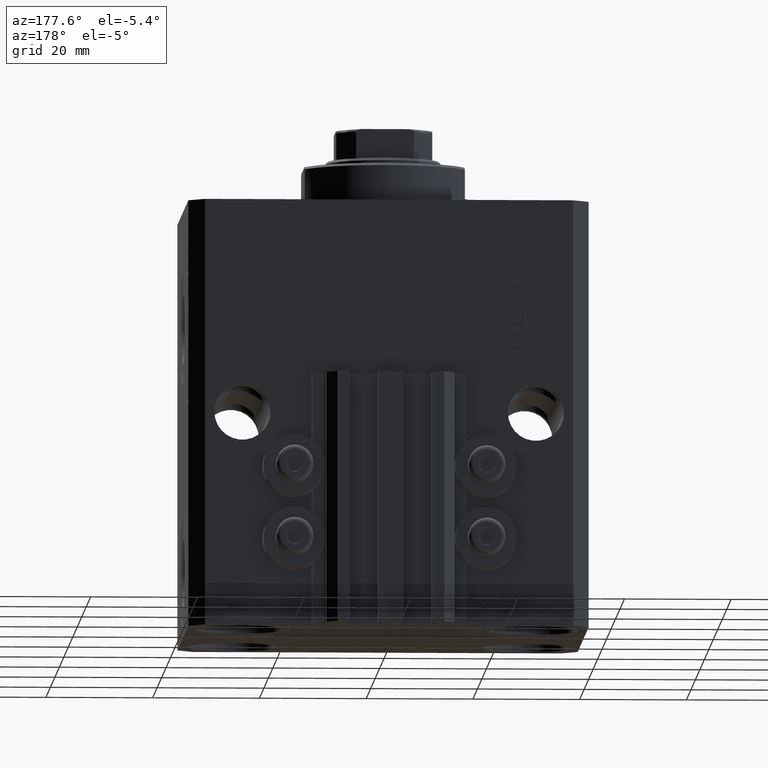
[diagram: clean part render]
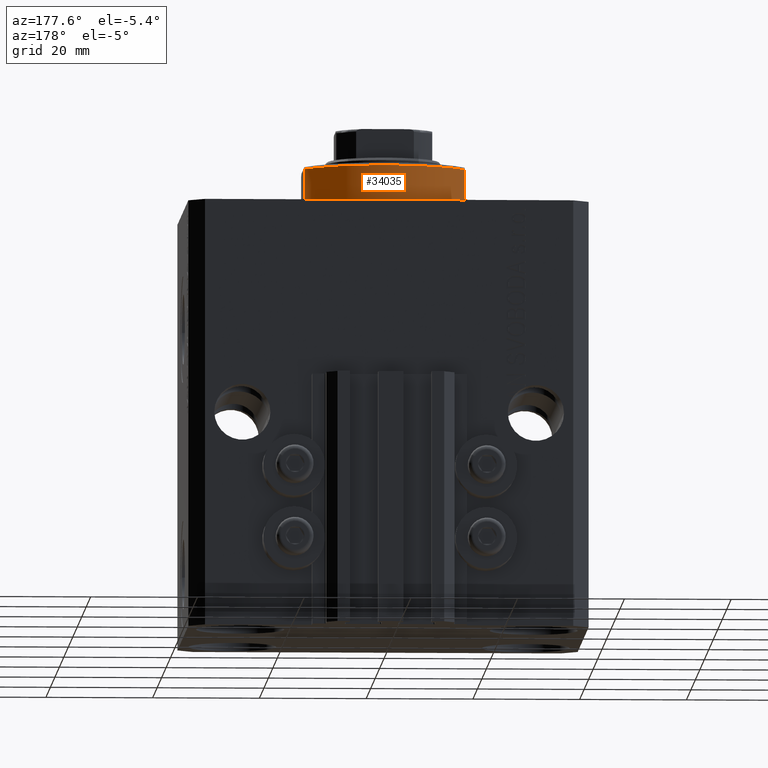
[diagram: same view with one face highlighted and labeled with its STEP entity id]
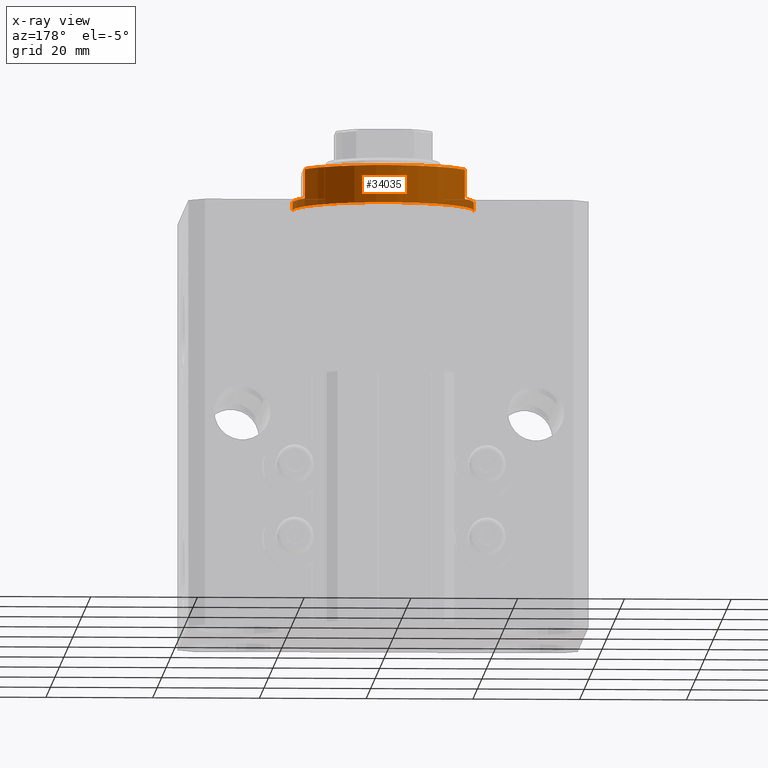
[diagram: x-ray of the same camera — body ghosted, the highlighted face saturated]
A machine part, auxiliary view. The second image highlights one B-rep face of the part: STEP entity #34035.
The next image is the same camera in x-ray: the body ghosted, the highlighted face saturated — about 7% of this face is hidden behind the body in this view.
In plain terms, the highlighted cylindrical surface (partial cylindrical patch) has radius 17 mm, axis along (0, 0, -1).
Its self-contained STEP definition (entity closure, byte-faithful):
#341 = CIRCLE ( 'NONE', #26814, 17.00000000000000000 ) ;
#1259 = AXIS2_PLACEMENT_3D ( 'NONE', #24283, #6498, #27587 ) ;
#1981 = ORIENTED_EDGE ( 'NONE', *, *, #3609, .T. ) ;
#2093 = CYLINDRICAL_SURFACE ( 'NONE', #43644, 17.00000000000000000 ) ;
#2401 = EDGE_CURVE ( 'NONE', #40917, #38834, #20155, .T. ) ;
#3095 = DIRECTION ( 'NONE',  ( -0.000000000000000000, -0.000000000000000000, 1.000000000000000000 ) ) ;
#3137 = EDGE_CURVE ( 'NONE', #3816, #42090, #8534, .T. ) ;
#3609 = EDGE_CURVE ( 'NONE', #40917, #27446, #10507, .T. ) ;
#3816 = VERTEX_POINT ( 'NONE', #45061 ) ;
#4898 = VERTEX_POINT ( 'NONE', #19457 ) ;
#5069 = VECTOR ( 'NONE', #21415, 1000.000000000000000 ) ;
#5978 = VERTEX_POINT ( 'NONE', #24993 ) ;
#6498 = DIRECTION ( 'NONE',  ( 0.000000000000000000, 0.000000000000000000, -1.000000000000000000 ) ) ;
#8534 = LINE ( 'NONE', #26545, #18734 ) ;
#9543 = CARTESIAN_POINT ( 'NONE',  ( 0.000000000000000000, 0.000000000000000000, -0.5000000000000004441 ) ) ;
#9671 = FACE_OUTER_BOUND ( 'NONE', #30953, .T. ) ;
#10507 = LINE ( 'NONE', #43209, #5069 ) ;
#11970 = CIRCLE ( 'NONE', #12079, 17.00000000000000000 ) ;
#12079 = AXIS2_PLACEMENT_3D ( 'NONE', #27759, #12610, #27060 ) ;
#12610 = DIRECTION ( 'NONE',  ( 0.000000000000000000, 0.000000000000000000, 1.000000000000000000 ) ) ;
#12767 = DIRECTION ( 'NONE',  ( 1.000000000000000000, 0.000000000000000000, 0.000000000000000000 ) ) ;
#14488 = CARTESIAN_POINT ( 'NONE',  ( 0.000000000000000000, 0.000000000000000000, -2.000000000000000000 ) ) ;
#15891 = DIRECTION ( 'NONE',  ( -0.000000000000000000, -0.000000000000000000, 1.000000000000000000 ) ) ;
#16011 = ORIENTED_EDGE ( 'NONE', *, *, #22479, .T. ) ;
#16067 = CIRCLE ( 'NONE', #37274, 17.00000000000000000 ) ;
#16429 = DIRECTION ( 'NONE',  ( 1.000000000000000000, 0.000000000000000000, 0.000000000000000000 ) ) ;
#18697 = EDGE_CURVE ( 'NONE', #27446, #4898, #16067, .T. ) ;
#18734 = VECTOR ( 'NONE', #15891, 1000.000000000000000 ) ;
#18888 = VERTEX_POINT ( 'NONE', #36957 ) ;
#18946 = CARTESIAN_POINT ( 'NONE',  ( -17.00000000000000000, 2.081899558550500280E-15, -2.000000000000000000 ) ) ;
#19344 = ORIENTED_EDGE ( 'NONE', *, *, #28221, .F. ) ;
#19457 = CARTESIAN_POINT ( 'NONE',  ( 17.00000000000000000, 0.000000000000000000, -0.5000000000000004441 ) ) ;
#20155 = CIRCLE ( 'NONE', #1259, 17.00000000000000000 ) ;
#21415 = DIRECTION ( 'NONE',  ( -0.000000000000000000, -0.000000000000000000, 1.000000000000000000 ) ) ;
#22479 = EDGE_CURVE ( 'NONE', #18888, #38834, #44963, .T. ) ;
#23412 = DIRECTION ( 'NONE',  ( -0.000000000000000000, -0.000000000000000000, 1.000000000000000000 ) ) ;
#23998 = DIRECTION ( 'NONE',  ( -0.000000000000000000, -0.000000000000000000, -1.000000000000000000 ) ) ;
#24283 = CARTESIAN_POINT ( 'NONE',  ( 0.000000000000000000, 0.000000000000000000, -2.000000000000000000 ) ) ;
#24652 = LINE ( 'NONE', #35557, #40624 ) ;
#24993 = CARTESIAN_POINT ( 'NONE',  ( 17.00000000000000000, 0.000000000000000000, -2.000000000000000000 ) ) ;
#26545 = CARTESIAN_POINT ( 'NONE',  ( 15.00000000000000000, 8.000000000000001776, -8.000000000000000000 ) ) ;
#26814 = AXIS2_PLACEMENT_3D ( 'NONE', #14488, #45398, #34043 ) ;
#27060 = DIRECTION ( 'NONE',  ( -1.000000000000000000, 0.000000000000000000, 0.000000000000000000 ) ) ;
#27446 = VERTEX_POINT ( 'NONE', #39216 ) ;
#27587 = DIRECTION ( 'NONE',  ( -1.000000000000000000, 0.000000000000000000, 0.000000000000000000 ) ) ;
#27759 = CARTESIAN_POINT ( 'NONE',  ( 0.000000000000000000, 0.000000000000000000, -7.500000000000007105 ) ) ;
#28221 = EDGE_CURVE ( 'NONE', #42090, #5978, #341, .T. ) ;
#28575 = ORIENTED_EDGE ( 'NONE', *, *, #40474, .T. ) ;
#30761 = CARTESIAN_POINT ( 'NONE',  ( 0.000000000000000000, 0.000000000000000000, -8.000000000000000000 ) ) ;
#30953 = EDGE_LOOP ( 'NONE', ( #38535, #1981, #31899, #34369, #19344, #45229, #28575, #16011 ) ) ;
#31899 = ORIENTED_EDGE ( 'NONE', *, *, #18697, .T. ) ;
#33816 = EDGE_CURVE ( 'NONE', #5978, #4898, #24652, .T. ) ;
#33845 = CARTESIAN_POINT ( 'NONE',  ( -15.00000000000000000, 8.000000000000001776, -8.000000000000000000 ) ) ;
#34035 = ADVANCED_FACE ( 'NONE', ( #9671 ), #2093, .T. ) ;
#34043 = DIRECTION ( 'NONE',  ( -1.000000000000000000, 0.000000000000000000, 0.000000000000000000 ) ) ;
#34321 = VECTOR ( 'NONE', #23412, 1000.000000000000000 ) ;
#34369 = ORIENTED_EDGE ( 'NONE', *, *, #33816, .F. ) ;
#35557 = CARTESIAN_POINT ( 'NONE',  ( 17.00000000000000000, 0.000000000000000000, -8.000000000000000000 ) ) ;
#36939 = CARTESIAN_POINT ( 'NONE',  ( 14.99999999999999645, 8.000000000000003553, -2.000000000000000000 ) ) ;
#36957 = CARTESIAN_POINT ( 'NONE',  ( -15.00000000000000000, 8.000000000000001776, -7.500000000000007105 ) ) ;
#37274 = AXIS2_PLACEMENT_3D ( 'NONE', #9543, #23998, #16429 ) ;
#38535 = ORIENTED_EDGE ( 'NONE', *, *, #2401, .F. ) ;
#38834 = VERTEX_POINT ( 'NONE', #40012 ) ;
#39216 = CARTESIAN_POINT ( 'NONE',  ( -17.00000000000000000, 2.081899558550500280E-15, -0.5000000000000004441 ) ) ;
#40012 = CARTESIAN_POINT ( 'NONE',  ( -14.99999999999999645, 8.000000000000003553, -2.000000000000000000 ) ) ;
#40474 = EDGE_CURVE ( 'NONE', #3816, #18888, #11970, .T. ) ;
#40624 = VECTOR ( 'NONE', #3095, 1000.000000000000000 ) ;
#40917 = VERTEX_POINT ( 'NONE', #18946 ) ;
#42090 = VERTEX_POINT ( 'NONE', #36939 ) ;
#43209 = CARTESIAN_POINT ( 'NONE',  ( -17.00000000000000000, 2.081899558550500280E-15, -8.000000000000000000 ) ) ;
#43644 = AXIS2_PLACEMENT_3D ( 'NONE', #30761, #45214, #12767 ) ;
#44963 = LINE ( 'NONE', #33845, #34321 ) ;
#45061 = CARTESIAN_POINT ( 'NONE',  ( 15.00000000000000000, 8.000000000000001776, -7.500000000000007105 ) ) ;
#45214 = DIRECTION ( 'NONE',  ( -0.000000000000000000, -0.000000000000000000, 1.000000000000000000 ) ) ;
#45229 = ORIENTED_EDGE ( 'NONE', *, *, #3137, .F. ) ;
#45398 = DIRECTION ( 'NONE',  ( 0.000000000000000000, 0.000000000000000000, -1.000000000000000000 ) ) ;